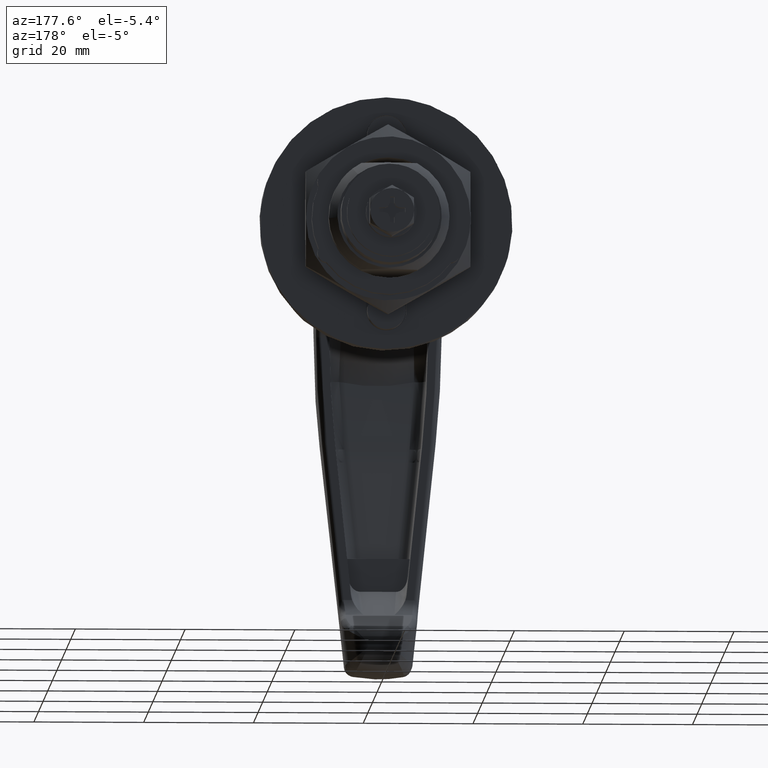
[diagram: clean part render]
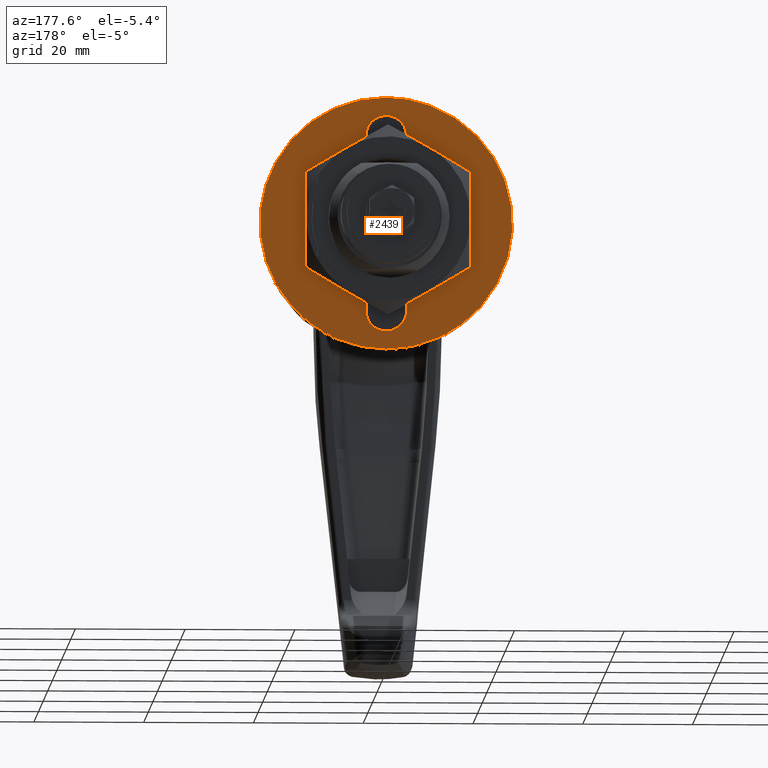
[diagram: same view with one face highlighted and labeled with its STEP entity id]
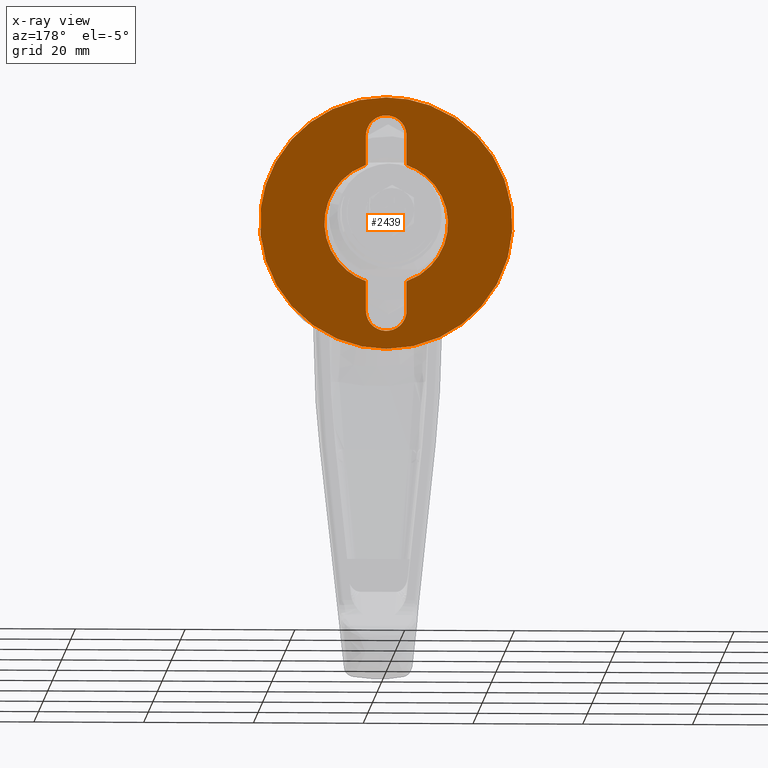
[diagram: x-ray of the same camera — body ghosted, the highlighted face saturated]
A machine part, auxiliary view. The second image highlights one B-rep face of the part: STEP entity #2439.
The next image is the same camera in x-ray: the body ghosted, the highlighted face saturated — about 0% of this face is hidden behind the body in this view.
In plain terms, the highlighted face is a freeform B-spline surface patch.
Its self-contained STEP definition (entity closure, byte-faithful):
#2166=CARTESIAN_POINT('',(-3.725614E-013,-22.839219306267630,2.714782102839679));
#2167=VERTEX_POINT('',#2166);
#2168=CARTESIAN_POINT('',(0.0,0.000000429399194,-23.0));
#2169=VERTEX_POINT('',#2168);
#2170=CARTESIAN_POINT('',(-3.725614E-013,-22.839219306267630,2.714782102839678));
#2171=CARTESIAN_POINT('',(0.0,-22.999999570600810,1.362152076875989));
#2172=CARTESIAN_POINT('',(0.0,-22.999999570600810,2.629225E-023));
#2173=CARTESIAN_POINT('',(0.0,-22.999999570600803,-22.999999999999993));
#2174=CARTESIAN_POINT('',(0.0,0.000000429399194,-23.0));
#2182=(BOUNDED_CURVE()B_SPLINE_CURVE(2,(#2170,#2171,#2172,#2173,#2174),.UNSPECIFIED.,.F.,.U.)B_SPLINE_CURVE_WITH_KNOTS((3,2,3),(0.229562512691595,0.250000000000000,0.500000000000000),.UNSPECIFIED.)CURVE()GEOMETRIC_REPRESENTATION_ITEM()RATIONAL_B_SPLINE_CURVE((0.956026830974368,0.976055994231129,1.0,0.707106781186548,1.0))REPRESENTATION_ITEM(''));
#2183=EDGE_CURVE('',#2167,#2169,#2182,.T.);
#2224=CARTESIAN_POINT('',(-1.016286E-011,22.957103409954829,-1.404073622829644));
#2225=VERTEX_POINT('',#2224);
#2231=CARTESIAN_POINT('',(0.0,0.000000429399194,-23.0));
#2232=CARTESIAN_POINT('',(0.0,21.636280368322812,-23.000000000000004));
#2233=CARTESIAN_POINT('',(-1.016286E-011,22.957103409954826,-1.404073622829644));
#2241=(BOUNDED_CURVE()B_SPLINE_CURVE(2,(#2231,#2232,#2233),.UNSPECIFIED.,.F.,.U.)B_SPLINE_CURVE_WITH_KNOTS((3,3),(0.500000000000000,0.739333283827450),.UNSPECIFIED.)CURVE()GEOMETRIC_REPRESENTATION_ITEM()RATIONAL_B_SPLINE_CURVE((1.0,0.719603616522339,0.976072730893074))REPRESENTATION_ITEM(''));
#2242=EDGE_CURVE('',#2169,#2225,#2241,.T.);
#2265=CARTESIAN_POINT('',(0.0,0.000000429399194,23.0));
#2266=VERTEX_POINT('',#2265);
#2267=CARTESIAN_POINT('',(0.0,0.000000429399194,23.0));
#2268=CARTESIAN_POINT('',(0.0,-20.428018436152104,22.999999999999996));
#2269=CARTESIAN_POINT('',(-3.725614E-013,-22.839219306267630,2.714782102839678));
#2277=(BOUNDED_CURVE()B_SPLINE_CURVE(2,(#2267,#2268,#2269),.UNSPECIFIED.,.F.,.U.)B_SPLINE_CURVE_WITH_KNOTS((3,3),(0.0,0.229562512691595),.UNSPECIFIED.)CURVE()GEOMETRIC_REPRESENTATION_ITEM()RATIONAL_B_SPLINE_CURVE((1.0,0.731050786955418,0.956026830974368))REPRESENTATION_ITEM(''));
#2278=EDGE_CURVE('',#2266,#2167,#2277,.T.);
#2280=CARTESIAN_POINT('',(-1.016286E-011,22.957103409954826,-1.404073622829644));
#2281=CARTESIAN_POINT('',(0.0,23.000000429399194,-0.702692102650013));
#2282=CARTESIAN_POINT('',(0.0,23.000000429399190,2.629225E-023));
#2283=CARTESIAN_POINT('',(0.0,23.000000429399197,22.999999999999993));
#2284=CARTESIAN_POINT('',(0.0,0.000000429399194,23.0));
#2292=(BOUNDED_CURVE()B_SPLINE_CURVE(2,(#2280,#2281,#2282,#2283,#2284),.UNSPECIFIED.,.F.,.U.)B_SPLINE_CURVE_WITH_KNOTS((3,2,3),(0.739333283827450,0.750000000000000,1.0),.UNSPECIFIED.)CURVE()GEOMETRIC_REPRESENTATION_ITEM()RATIONAL_B_SPLINE_CURVE((0.976072730893074,0.987503164664209,1.0,0.707106781186548,1.0))REPRESENTATION_ITEM(''));
#2293=EDGE_CURVE('',#2225,#2266,#2292,.T.);
#2330=CARTESIAN_POINT('',(0.0,-25.297281591287241,25.297699910843079));
#2331=CARTESIAN_POINT('',(0.0,25.297140561228741,25.297699910843079));
#2332=CARTESIAN_POINT('',(0.0,-25.297281591287241,-25.297701144659221));
#2333=CARTESIAN_POINT('',(0.0,25.297140561228741,-25.297701144659221));
#2334=B_SPLINE_SURFACE_WITH_KNOTS('',1,1,((#2330,#2332),(#2331,#2333)),.UNSPECIFIED.,.F.,.F.,.U.,(2,2),(2,2),(0.0,50.594422152515982),(0.0,50.595401055502293),.UNSPECIFIED.);
#2335=ORIENTED_EDGE('',*,*,#2278,.T.);
#2336=ORIENTED_EDGE('',*,*,#2183,.T.);
#2337=ORIENTED_EDGE('',*,*,#2242,.T.);
#2338=ORIENTED_EDGE('',*,*,#2293,.T.);
#2339=EDGE_LOOP('',(#2335,#2336,#2337,#2338));
#2340=FACE_OUTER_BOUND('',#2339,.T.);
#2341=CARTESIAN_POINT('',(0.0,-3.700000000000000,10.624146776671321));
#2342=VERTEX_POINT('',#2341);
#2343=CARTESIAN_POINT('',(0.0,-3.700000000000000,-10.624146776671321));
#2344=VERTEX_POINT('',#2343);
#2345=CARTESIAN_POINT('',(0.0,-3.700000000000006,10.624146776671330));
#2346=CARTESIAN_POINT('',(0.0,-11.249999942056769,7.994759238926758));
#2347=CARTESIAN_POINT('',(0.0,-11.250000000000000,-0.000000166377668));
#2348=CARTESIAN_POINT('',(0.0,-11.250000057943227,-7.994759571682097));
#2349=CARTESIAN_POINT('',(0.0,-3.700000000000000,-10.624146776671321));
#2357=(BOUNDED_CURVE()B_SPLINE_CURVE(2,(#2345,#2346,#2347,#2348,#2349),.UNSPECIFIED.,.F.,.U.)B_SPLINE_CURVE_WITH_KNOTS((3,2,3),(0.0,0.500000000000000,1.0),.UNSPECIFIED.)CURVE()GEOMETRIC_REPRESENTATION_ITEM()RATIONAL_B_SPLINE_CURVE((1.0,0.815134619475012,1.0,0.815134619475012,1.0))REPRESENTATION_ITEM(''));
#2358=EDGE_CURVE('',#2342,#2344,#2357,.T.);
#2359=ORIENTED_EDGE('',*,*,#2358,.F.);
#2360=CARTESIAN_POINT('',(0.0,-3.700000000000000,16.0));
#2361=VERTEX_POINT('',#2360);
#2362=CARTESIAN_POINT('',(0.0,-3.700000000000000,16.0));
#2363=CARTESIAN_POINT('',(0.0,-3.700000000000000,10.624146776671321));
#2364=QUASI_UNIFORM_CURVE('',1,(#2362,#2363),.UNSPECIFIED.,.F.,.U.);
#2365=EDGE_CURVE('',#2361,#2342,#2364,.T.);
#2366=ORIENTED_EDGE('',*,*,#2365,.F.);
#2367=CARTESIAN_POINT('',(0.0,3.700000000000000,16.0));
#2368=VERTEX_POINT('',#2367);
#2369=CARTESIAN_POINT('',(0.0,3.699999999999999,16.0));
#2370=CARTESIAN_POINT('',(0.0,3.699999999999999,19.700000000000006));
#2371=CARTESIAN_POINT('',(0.0,-7.905216E-016,19.699999999999999));
#2372=CARTESIAN_POINT('',(0.0,-3.700000000000001,19.700000000000006));
#2373=CARTESIAN_POINT('',(0.0,-3.700000000000001,16.0));
#2381=(BOUNDED_CURVE()B_SPLINE_CURVE(2,(#2369,#2370,#2371,#2372,#2373),.UNSPECIFIED.,.F.,.U.)B_SPLINE_CURVE_WITH_KNOTS((3,2,3),(0.0,0.500000000000000,1.0),.UNSPECIFIED.)CURVE()GEOMETRIC_REPRESENTATION_ITEM()RATIONAL_B_SPLINE_CURVE((1.0,0.707106781186548,1.0,0.707106781186548,1.0))REPRESENTATION_ITEM(''));
#2382=EDGE_CURVE('',#2368,#2361,#2381,.T.);
#2383=ORIENTED_EDGE('',*,*,#2382,.F.);
#2384=CARTESIAN_POINT('',(0.0,3.700000000000000,10.624146776671321));
#2385=VERTEX_POINT('',#2384);
#2386=CARTESIAN_POINT('',(0.0,3.700000000000000,10.624146776671321));
#2387=CARTESIAN_POINT('',(0.0,3.700000000000000,16.0));
#2388=QUASI_UNIFORM_CURVE('',1,(#2386,#2387),.UNSPECIFIED.,.F.,.U.);
#2389=EDGE_CURVE('',#2385,#2368,#2388,.T.);
#2390=ORIENTED_EDGE('',*,*,#2389,.F.);
#2391=CARTESIAN_POINT('',(0.0,3.700000000000000,-10.624146776671321));
#2392=VERTEX_POINT('',#2391);
#2393=CARTESIAN_POINT('',(0.0,3.700000000000000,-10.624146776671321));
#2394=CARTESIAN_POINT('',(0.0,11.250000057943224,-7.994759571682098));
#2395=CARTESIAN_POINT('',(0.0,11.250000000000000,-0.000000166377671));
#2396=CARTESIAN_POINT('',(0.0,11.249999942056773,7.994759238926755));
#2397=CARTESIAN_POINT('',(0.0,3.700000000000009,10.624146776671330));
#2405=(BOUNDED_CURVE()B_SPLINE_CURVE(2,(#2393,#2394,#2395,#2396,#2397),.UNSPECIFIED.,.F.,.U.)B_SPLINE_CURVE_WITH_KNOTS((3,2,3),(0.0,0.500000000000000,1.0),.UNSPECIFIED.)CURVE()GEOMETRIC_REPRESENTATION_ITEM()RATIONAL_B_SPLINE_CURVE((1.0,0.815134619475012,1.0,0.815134619475012,1.0))REPRESENTATION_ITEM(''));
#2406=EDGE_CURVE('',#2392,#2385,#2405,.T.);
#2407=ORIENTED_EDGE('',*,*,#2406,.F.);
#2408=CARTESIAN_POINT('',(0.0,3.700000000000000,-16.0));
#2409=VERTEX_POINT('',#2408);
#2410=CARTESIAN_POINT('',(0.0,3.700000000000000,-16.0));
#2411=CARTESIAN_POINT('',(0.0,3.700000000000000,-10.624146776671321));
#2412=QUASI_UNIFORM_CURVE('',1,(#2410,#2411),.UNSPECIFIED.,.F.,.U.);
#2413=EDGE_CURVE('',#2409,#2392,#2412,.T.);
#2414=ORIENTED_EDGE('',*,*,#2413,.F.);
#2415=CARTESIAN_POINT('',(0.0,-3.700000000000000,-16.0));
#2416=VERTEX_POINT('',#2415);
#2417=CARTESIAN_POINT('',(0.0,-3.699999999999999,-16.0));
#2418=CARTESIAN_POINT('',(0.0,-3.699999999999999,-19.700000000000006));
#2419=CARTESIAN_POINT('',(0.0,7.905216E-016,-19.699999999999999));
#2420=CARTESIAN_POINT('',(0.0,3.700000000000001,-19.700000000000006));
#2421=CARTESIAN_POINT('',(0.0,3.700000000000001,-16.0));
#2429=(BOUNDED_CURVE()B_SPLINE_CURVE(2,(#2417,#2418,#2419,#2420,#2421),.UNSPECIFIED.,.F.,.U.)B_SPLINE_CURVE_WITH_KNOTS((3,2,3),(0.0,0.500000000000000,1.0),.UNSPECIFIED.)CURVE()GEOMETRIC_REPRESENTATION_ITEM()RATIONAL_B_SPLINE_CURVE((1.0,0.707106781186548,1.0,0.707106781186548,1.0))REPRESENTATION_ITEM(''));
#2430=EDGE_CURVE('',#2416,#2409,#2429,.T.);
#2431=ORIENTED_EDGE('',*,*,#2430,.F.);
#2432=CARTESIAN_POINT('',(0.0,-3.700000000000000,-10.624146776671321));
#2433=CARTESIAN_POINT('',(0.0,-3.700000000000000,-16.0));
#2434=QUASI_UNIFORM_CURVE('',1,(#2432,#2433),.UNSPECIFIED.,.F.,.U.);
#2435=EDGE_CURVE('',#2344,#2416,#2434,.T.);
#2436=ORIENTED_EDGE('',*,*,#2435,.F.);
#2437=EDGE_LOOP('',(#2359,#2366,#2383,#2390,#2407,#2414,#2431,#2436));
#2438=FACE_BOUND('',#2437,.T.);
#2439=ADVANCED_FACE('',(#2340,#2438),#2334,.F.);